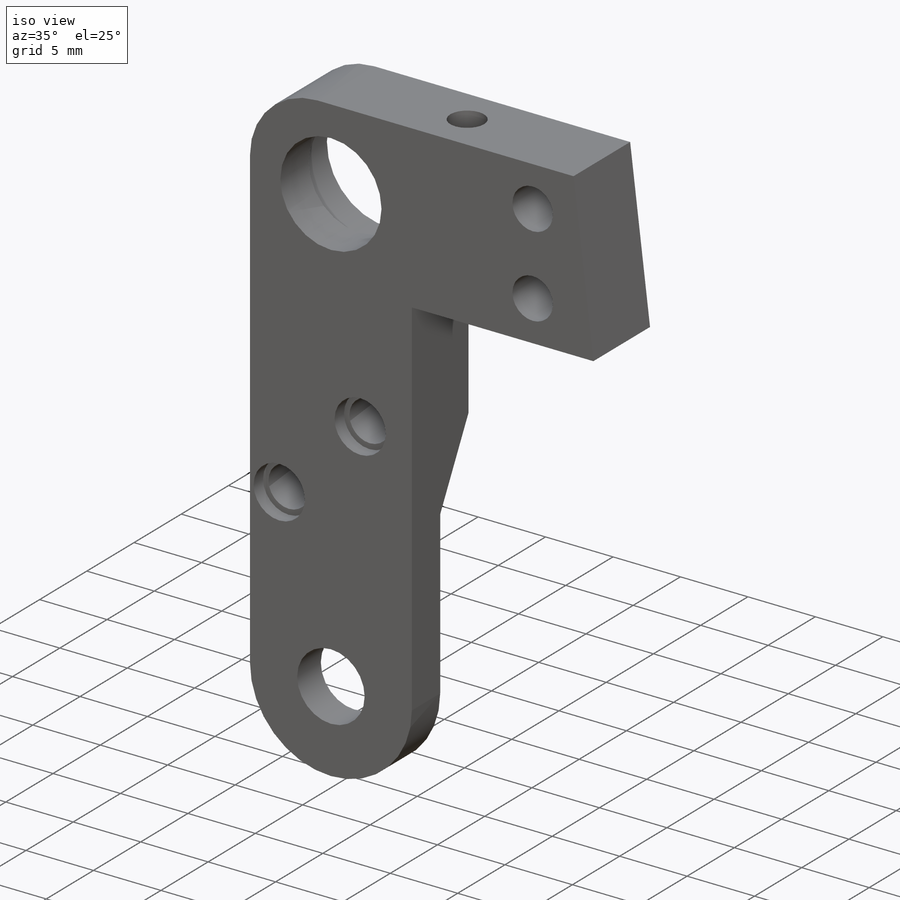
[diagram: iso view]
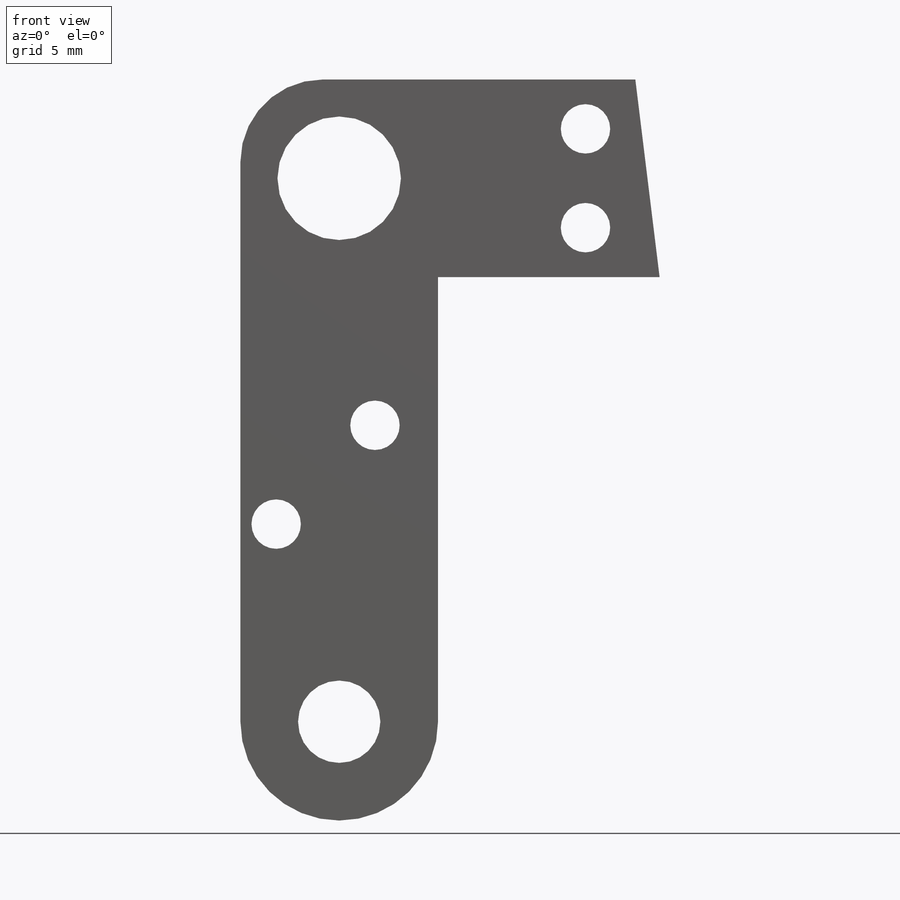
[diagram: front view]
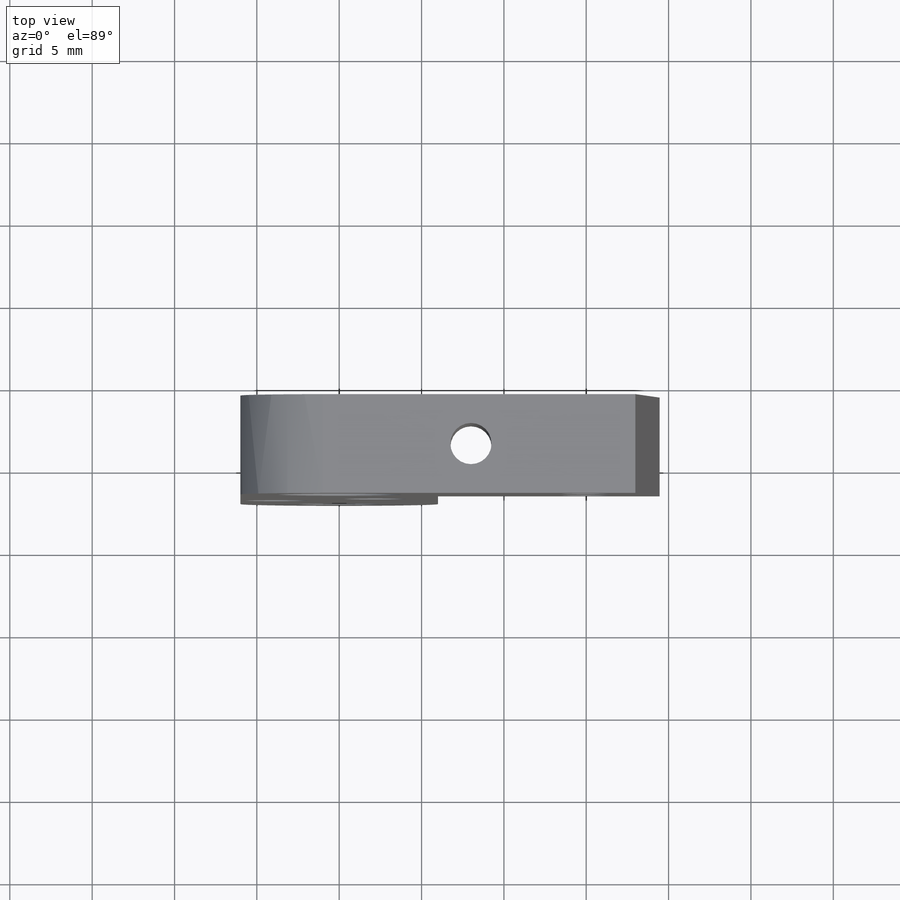
[diagram: top view]
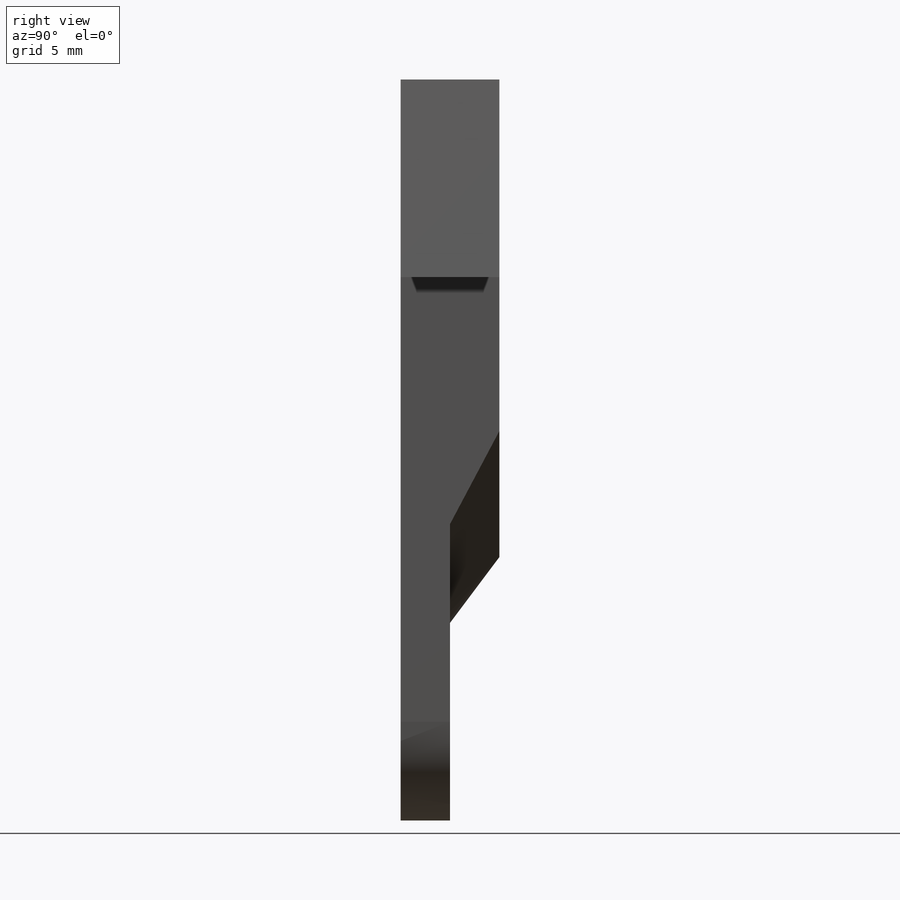
[diagram: right view]
SOLIDWORKS PART (.sldprt)
format: sldprt  version: not decoded by parser v0  size: 384,512 bytes
history: native  units: mm
features: sketch x10, cut_extrude x4, plane x3, extrude x3, thread x3, material x1, chamfer x1, mirror x1, delete_body x1, hole x1 (+9 scaffold rows collapsed)
feature tree (37):
  scaffold x9  (default folders/planes/origin — collapsed)
  material  "Material <não especificado>"
  plane  "Plano frontal"
  plane  "Plano superior"
  plane  "Plano direito"
  sketch  "Esboço1"  dims[c1.D3=12.0mm c1.D5=9.0mm c1.D7=4.0mm c1.D8=2.0mm c1.D9=3.7mm c1.D10=5.0mm c1.D1=6.0mm c1.D2=46.0mm c1.D4=33.0mm c1.D6=25.0mm c2.D8=12.0mm c2.D9=18.0mm c2.D10=25.0mm c2.D11=28.0mm c3.D11=180.0deg c3.D7=12.0mm c3.D9=5.1mm c3.D12=7.03mm c4.D9=3.4mm c4.D12=4.69mm c4.D7=22.6mm c4.D8=6.0mm c5.D8=7.0deg c5.D9=12.0mm]
  extrude  "Ressalto-extrusão1"  Depth=3mm
  sketch  "Esboço2"  dims[c1.D2=6.0mm c1.D3=4.0mm c1.D1=7.0mm c2.D2=6.0mm c2.D4=0.0mm]
  extrude  "Ressalto-extrusão2"  Depth=3mm
  chamfer  "Chanfro1"  Distance=3mm
  mirror  "Espelhar1"
  delete_body  "Corpo-Excluir1"
  sketch  "Esboço3"  dims[D1=9.0mm]
  hole  "Furo roscado de M3x0.51"  [1 undecoded]
  sketch  "Esboço5"
  thread  "Rosca de furo1"  Diameter=3mm  [1 undecoded]
  sketch  "Esboço6"  dims[hole-wizard template sketch: 60 standard entries collapsed; hole parameters kept: c18.Thru Tap Drill Depth=12.0mm]
  sketch  "Esboço7"  dims[D1=7.5mm]
  extrude  "Ressalto-extrusão3"  Depth=3mm
  sketch  "Esboço8"  dims[D1=3.0mm]
  cut_extrude  "Corte-extrusão1"  [1 undecoded]
  sketch  "Esboço9"  dims[c1.D1=3.0mm c1.D2=3.0mm c1.D3=6.0mm c1.D4=2.0mm c2.D3=6.0mm c2.D5=6.0mm]
  cut_extrude  "Corte-extrusão2"  [1 undecoded]
  thread  "Chanfro2"  Diameter=0.75mm  [1 undecoded]
  sketch  "Esboço15"  dims[D1=5.0mm]
  cut_extrude  "Corte-extrusão4"  [1 undecoded]
  thread  "Chanfro3"  Diameter=0.5mm  [1 undecoded]
  sketch  "Esboço16"  dims[D1=3.8mm]
  cut_extrude  "Corte-extrusão5"  Depth=1mm
decode coverage: 17 of 24 modeling features carry decoded parameters
note: ~ marks probable driven/reference dimensions
note: 7 parameter values undecoded
summary: no parameter record found for 4 features
note: suppression state not decoded; provenance and decode notes live in map.json
